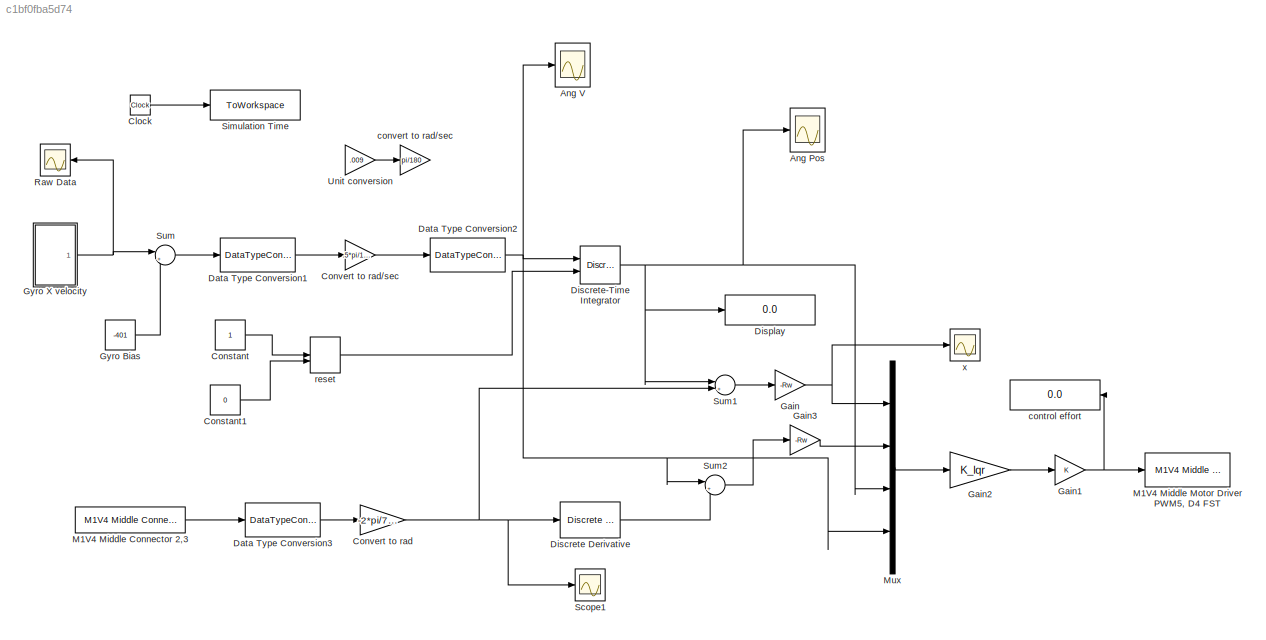
MODEL slx_c1bf0fba5d74
KIND model
CONFIG AbsTol = auto
CONFIG EnableMultiTasking = off
CONFIG FixedStep = .03
CONFIG MaxStep = auto
CONFIG MinStep = auto
CONFIG RelTol = 1e-3
CONFIG SampleTimeConstraint = Unconstrained
CONFIG Solver = FixedStepAuto
CONFIG SolverName = FixedStepAuto
CONFIG StartTime = 0.0
CONFIG StopTime = inf
BLOCK [Scope] Ang Pos
  Floating = off
  NumInputPorts = 1
  Ports = [1]
  ScopeSpecificationString = Simulink.scopes.TimeScopeBlockCfg('CurrentConfiguration', extmgr.ConfigurationSet(extmgr.Configuration('Core','General UI',true),extmgr.Configuration('Core','Source UI',true),extmgr.Configuration('Sources','WiredSimulink',true,'DataLoggingVariableName','ScopeData1','DataLoggingSaveFormat','StructureWithTime','DataLoggingLimitDataPoints',true,'DataLoggingDecimation','1','DataLoggingDecimateData',tr...<+1657ch>
BLOCK [Scope] Ang V
  Floating = off
  NumInputPorts = 1
  Ports = [1]
  ScopeSpecificationString = Simulink.scopes.TimeScopeBlockCfg('CurrentConfiguration', extmgr.ConfigurationSet(extmgr.Configuration('Core','General UI',true),extmgr.Configuration('Core','Source UI',true),extmgr.Configuration('Sources','WiredSimulink',true,'DataLoggingVariableName','ScopeData2','DataLoggingSaveFormat','StructureWithTime','DataLoggingLimitDataPoints',true,'DataLoggingDecimation','1','DataLoggingDecimateData',tr...<+1638ch>
BLOCK [Clock] Clock
BLOCK [Constant] Constant
BLOCK [Constant] Constant1
  Value = 0
BLOCK [Gain] Convert to rad
  Gain = -2*pi/720
BLOCK [Gain] Convert to rad//sec
  Gain = .5*pi/11220
BLOCK [DataTypeConversion] Data Type Conversion1
  OutDataTypeStr = double
  RndMeth = Floor
  SaturateOnIntegerOverflow = off
BLOCK [DataTypeConversion] Data Type Conversion2
  OutDataTypeStr = double
  RndMeth = Floor
  SaturateOnIntegerOverflow = off
BLOCK [DataTypeConversion] Data Type Conversion3
  OutDataTypeStr = double
  RndMeth = Floor
  SaturateOnIntegerOverflow = off
BLOCK [Reference] Discrete Derivative  REF=simulink/Discrete/Discrete Derivative
  Ports = [1, 1]
  SourceBlock = simulink/Discrete/Discrete Derivative
  SourceProductBaseCode = SL
  SourceType = Discrete Derivative
BLOCK [DiscreteIntegrator] Discrete-Time Integrator
  ExternalReset = either
  ICPrevOutput = DiscIntNeverNeededParam
  ICPrevScaledInput = DiscIntNeverNeededParam
  Ports = [2, 1]
  SampleTime = -1
BLOCK [Display] Display
  Decimation = 1
  Ports = [1]
BLOCK [Gain] Gain
  Gain = -Rw
BLOCK [Gain] Gain1
BLOCK [Gain] Gain2
  Gain = K_lqr
  Multiplication = Matrix(K*u)
BLOCK [Gain] Gain3
  Gain = -Rw
BLOCK [Constant] Gyro Bias
  Value = -401
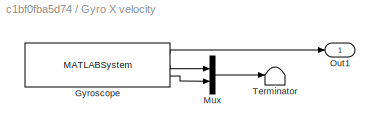
BLOCK [SubSystem] Gyro X velocity
  Ports = [0, 1]
  RequestExecContextInheritance = off
BLOCK [MATLABSystem] Gyro X velocity/Gyroscope
  DLPFmode = 5
  MaskDisplay = disp('soMPU6050Gyro');\nport_label('output',1,'xvel');\nport_label('output',2,'yvel');\nport_label('output',3,'zvel');
  MaskType = soMPU6050Gyro
  Ports = [0, 3]
  System = soMPU6050Gyro
BLOCK [Mux] Gyro X velocity/Mux
  DisplayOption = bar
  Inputs = 2
  Ports = [2, 1]
BLOCK [Outport] Gyro X velocity/Out1
BLOCK [Terminator] Gyro X velocity/Terminator
BLOCK [Reference] M1V4  Middle Motor Driver PWM5, D4 FST  REF=MinSegLibrary_M1V4/M1V4  Middle Motor Driver
PWM5, D4 FST
  Ports = [1]
  SourceBlock = MinSegLibrary_M1V4/M1V4  Middle Motor Driver\nPWM5, D4 FST
  SourceProductName = Rensselaer Arduino Support Package
  SourceType = Motor Driver
BLOCK [Reference] M1V4 Middle Connector 2,3  REF=MinSegLibrary_M1V4/M1V4 Middle Connector 2,3
  Ports = [0, 1]
  SourceBlock = MinSegLibrary_M1V4/M1V4 Middle Connector 2,3
  SourceProductName = Rensselaer Arduino Support Package
  SourceType = Encoder_arduino
BLOCK [Mux] Mux
  DisplayOption = bar
  Ports = [4, 1]
BLOCK [Scope] Raw Data
  Floating = off
  NameLocation = top
  NumInputPorts = 1
  Ports = [1]
  ScopeSpecificationString = Simulink.scopes.TimeScopeBlockCfg('CurrentConfiguration', extmgr.ConfigurationSet(extmgr.Configuration('Core','General UI',true),extmgr.Configuration('Core','Source UI',true),extmgr.Configuration('Sources','WiredSimulink',true),extmgr.Configuration('Visuals','Time Domain',true,'SerializedDisplays',{struct('MinYLimReal','-3894.125','MaxYLimReal','15247.125','YLabelReal','','MinYLimMag','  0.00000',...<+1381ch>
BLOCK [Scope] Scope1
  Floating = off
  NumInputPorts = 1
  Ports = [1]
  ScopeSpecificationString = Simulink.scopes.TimeScopeBlockCfg('CurrentConfiguration', extmgr.ConfigurationSet(extmgr.Configuration('Core','General UI',true),extmgr.Configuration('Core','Source UI',true),extmgr.Configuration('Sources','WiredSimulink',true,'DataLoggingVariableName','ScopeData1'),extmgr.Configuration('Visuals','Time Domain',true,'SerializedDisplays',{struct('MinYLimReal','-1.00247','MaxYLimReal','3.69901','YLab...<+1413ch>
BLOCK [ToWorkspace] Simulation Time
  FixptAsFi = on
  MaxDataPoints = inf
  Ports = [1]
  SampleTime = -1
  VariableName = tsim
BLOCK [Sum] Sum
  Inputs = |+-
  Ports = [2, 1]
BLOCK [Sum] Sum1
  Inputs = |++
  Ports = [2, 1]
BLOCK [Sum] Sum2
  Inputs = |++
  Ports = [2, 1]
BLOCK [Gain] Unit conversion
  Commented = on
  Gain = .009
BLOCK [Display] control effort
  Decimation = 1
  NameLocation = top
  Ports = [1]
BLOCK [Gain] convert to rad//sec
  Commented = on
  Gain = pi/180
BLOCK [ManualSwitch] reset
BLOCK [Scope] x
  Floating = off
  NumInputPorts = 1
  Ports = [1]
  ScopeSpecificationString = Simulink.scopes.TimeScopeBlockCfg('CurrentConfiguration', extmgr.ConfigurationSet(extmgr.Configuration('Core','General UI',true),extmgr.Configuration('Core','Source UI',true),extmgr.Configuration('Sources','WiredSimulink',true,'DataLoggingVariableName','ScopeData1'),extmgr.Configuration('Visuals','Time Domain',true,'SerializedDisplays',{struct('MinYLimReal','-0.08595','MaxYLimReal','0.02279','YLab...<+1398ch>
LINE Clock:1 -> Simulation Time:1
LINE Constant1:1 -> reset:2
LINE Constant:1 -> reset:1
LINE Convert to rad//sec:1 -> Data Type Conversion2:1
NET Convert to rad:1 -> Discrete Derivative:1, Scope1:1, Sum1:2
LINE Data Type Conversion1:1 -> Convert to rad//sec:1
NET Data Type Conversion2:1 -> Ang V:1, Discrete-Time Integrator:1, Mux:4, Sum2:1
LINE Data Type Conversion3:1 -> Convert to rad:1
LINE Discrete Derivative:1 -> Sum2:2
NET Discrete-Time Integrator:1 -> Ang Pos:1, Display:1, Mux:3, Sum1:1
NET Gain1:1 -> M1V4  Middle Motor Driver PWM5, D4 FST:1, control effort:1
LINE Gain2:1 -> Gain1:1
LINE Gain3:1 -> Mux:2
NET Gain:1 -> Mux:1, x:1
LINE Gyro Bias:1 -> Sum:2
LINE Gyro X velocity/Gyroscope:1 -> Gyro X velocity/Out1:1
LINE Gyro X velocity/Gyroscope:2 -> Gyro X velocity/Mux:1
LINE Gyro X velocity/Gyroscope:3 -> Gyro X velocity/Mux:2
LINE Gyro X velocity/Mux:1 -> Gyro X velocity/Terminator:1
NET Gyro X velocity:1 -> Raw Data:1, Sum:1
LINE M1V4 Middle Connector 2,3:1 -> Data Type Conversion3:1
LINE Mux:1 -> Gain2:1
LINE Sum1:1 -> Gain:1
LINE Sum2:1 -> Gain3:1
LINE Sum:1 -> Data Type Conversion1:1
LINE Unit conversion:1 -> convert to rad//sec:1
LINE reset:1 -> Discrete-Time Integrator:2
note: NET lines group one-source signal fan-out (src -> all destinations, sorted); 1:1 wires keep LINE
